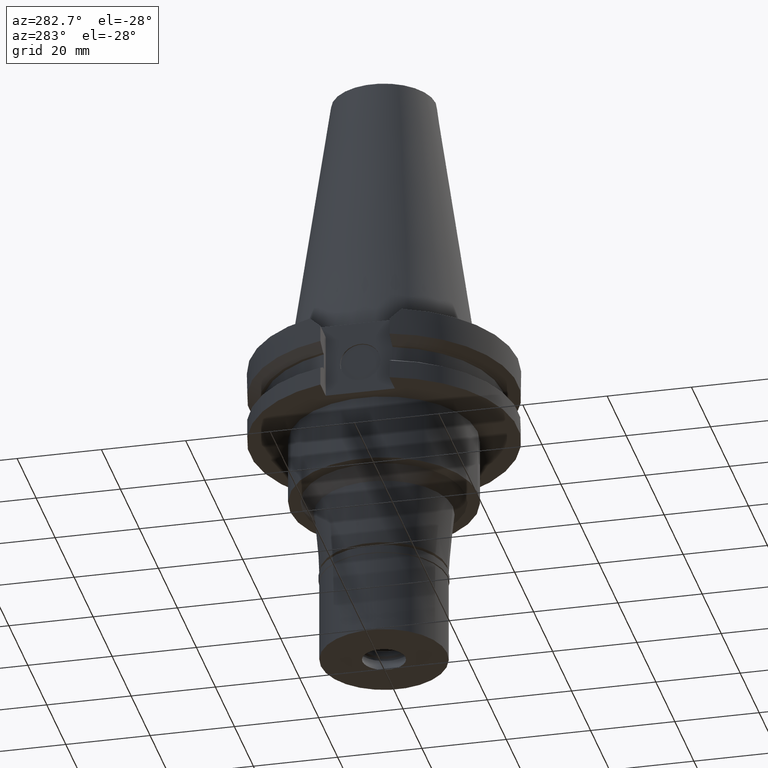
[diagram: clean part render]
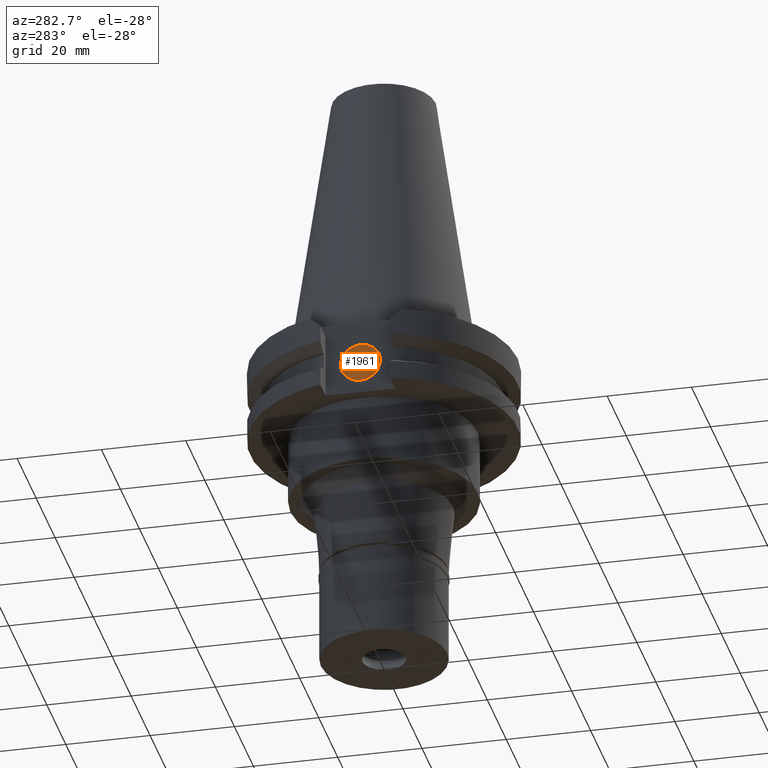
[diagram: same view with one face highlighted and labeled with its STEP entity id]
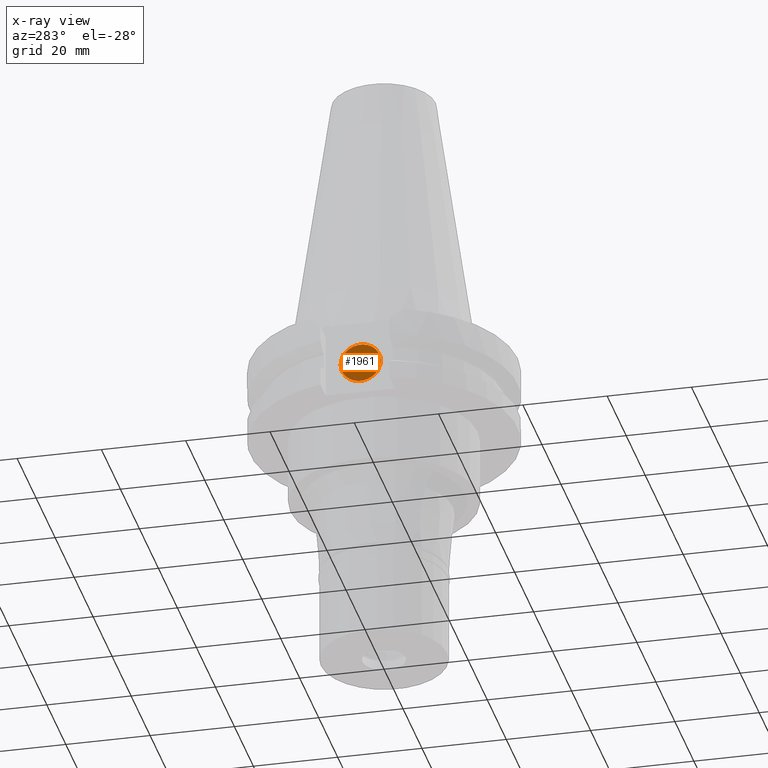
[diagram: x-ray of the same camera — body ghosted, the highlighted face saturated]
A machine part, auxiliary view. The second image highlights one B-rep face of the part: STEP entity #1961.
The next image is the same camera in x-ray: the body ghosted, the highlighted face saturated — about 0% of this face is hidden behind the body in this view.
In plain terms, the highlighted planar face has unit normal (1, 0, 0).
Its self-contained STEP definition (entity closure, byte-faithful):
#112 = ORIENTED_EDGE ( 'NONE', *, *, #538, .F. ) ;
#167 = FACE_OUTER_BOUND ( 'NONE', #280, .T. ) ;
#181 = DIRECTION ( 'NONE',  ( 1.000000000000000000, 0.0000000000000000000, 0.0000000000000000000 ) ) ;
#197 = CIRCLE ( 'NONE', #3211, 4.762500000000000178 ) ;
#199 = DIRECTION ( 'NONE',  ( 0.0000000000000000000, -1.000000000000000000, 0.0000000000000000000 ) ) ;
#253 = CIRCLE ( 'NONE', #697, 4.762500000000000178 ) ;
#280 = EDGE_LOOP ( 'NONE', ( #112, #2005 ) ) ;
#432 = DIRECTION ( 'NONE',  ( 0.0000000000000000000, 1.000000000000000000, 0.0000000000000000000 ) ) ;
#538 = EDGE_CURVE ( 'NONE', #593, #1311, #197, .T. ) ;
#593 = VERTEX_POINT ( 'NONE', #1221 ) ;
#596 = AXIS2_PLACEMENT_3D ( 'NONE', #2489, #949, #2004 ) ;
#638 = EDGE_CURVE ( 'NONE', #1311, #593, #253, .T. ) ;
#697 = AXIS2_PLACEMENT_3D ( 'NONE', #784, #2823, #199 ) ;
#784 = CARTESIAN_POINT ( 'NONE',  ( -24.59900000000000020, 0.0000000000000000000, -11.18000000000000149 ) ) ;
#917 = CARTESIAN_POINT ( 'NONE',  ( -24.59900000000000020, 0.0000000000000000000, -11.18000000000000149 ) ) ;
#949 = DIRECTION ( 'NONE',  ( 1.000000000000000000, 0.0000000000000000000, 0.0000000000000000000 ) ) ;
#1221 = CARTESIAN_POINT ( 'NONE',  ( -24.59900000000000020, 4.762500000000000178, -11.18000000000000149 ) ) ;
#1311 = VERTEX_POINT ( 'NONE', #2765 ) ;
#1961 = ADVANCED_FACE ( 'NONE', ( #167 ), #3293, .F. ) ;
#2004 = DIRECTION ( 'NONE',  ( 0.0000000000000000000, 1.000000000000000000, 0.0000000000000000000 ) ) ;
#2005 = ORIENTED_EDGE ( 'NONE', *, *, #638, .F. ) ;
#2489 = CARTESIAN_POINT ( 'NONE',  ( -24.59900000000000020, 0.0000000000000000000, 0.0000000000000000000 ) ) ;
#2765 = CARTESIAN_POINT ( 'NONE',  ( -24.59900000000000020, -4.762500000000000178, -11.18000000000000149 ) ) ;
#2823 = DIRECTION ( 'NONE',  ( 1.000000000000000000, 0.0000000000000000000, 0.0000000000000000000 ) ) ;
#3211 = AXIS2_PLACEMENT_3D ( 'NONE', #917, #181, #432 ) ;
#3293 = PLANE ( 'NONE',  #596 ) ;